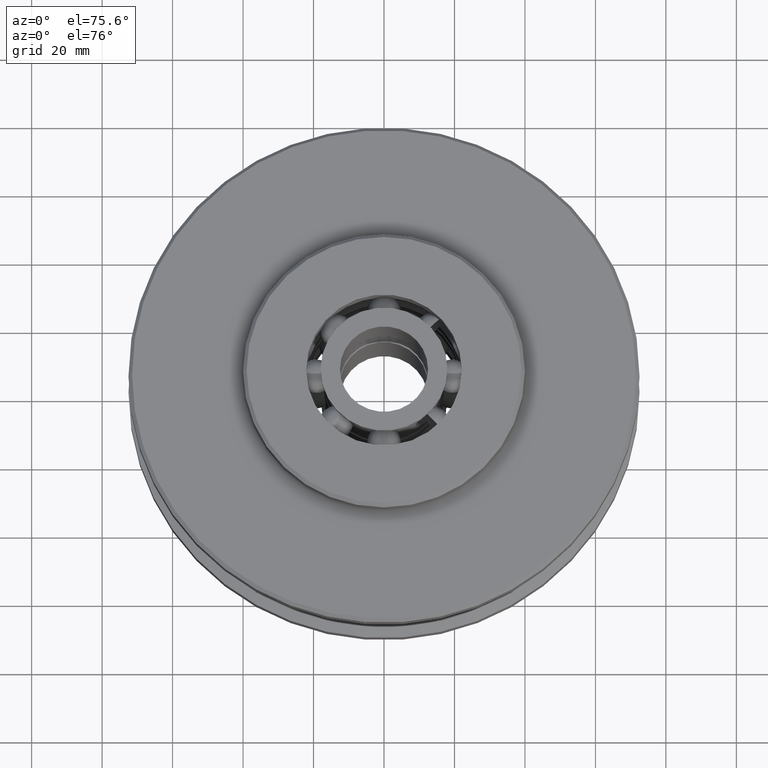
[diagram: clean part render]
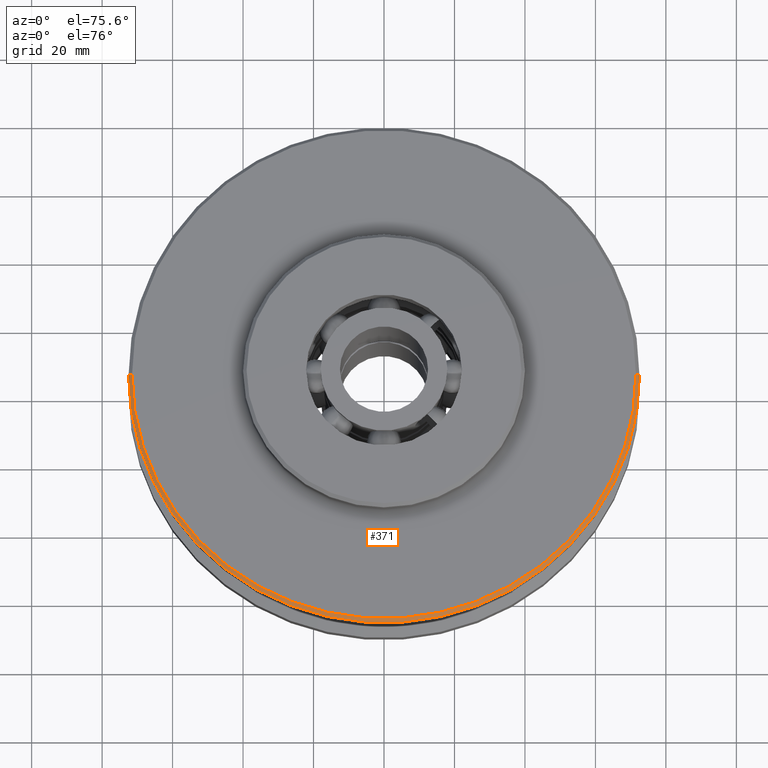
[diagram: same view with one face highlighted and labeled with its STEP entity id]
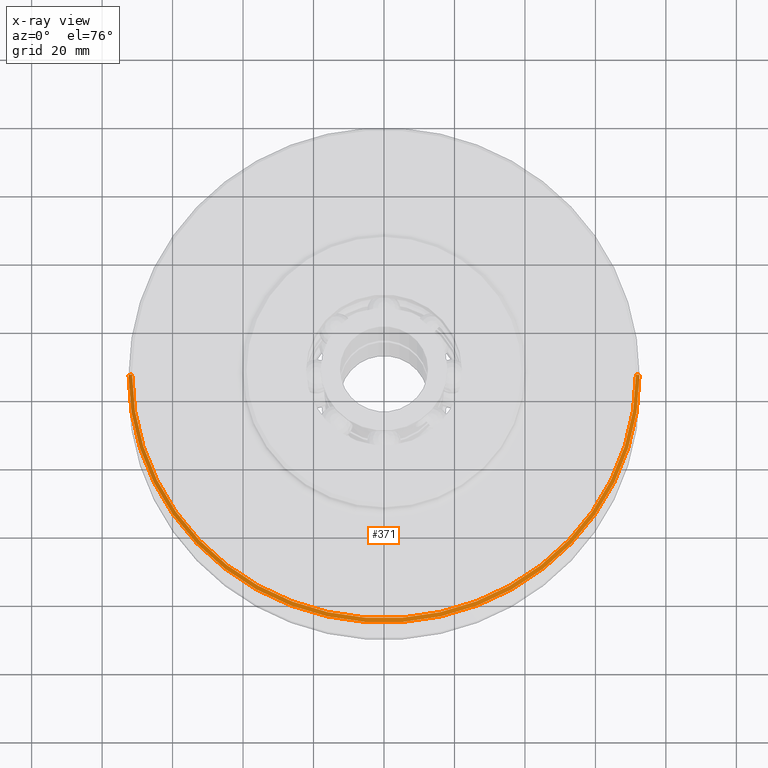
[diagram: x-ray of the same camera — body ghosted, the highlighted face saturated]
A machine part, auxiliary view. The second image highlights one B-rep face of the part: STEP entity #371.
The next image is the same camera in x-ray: the body ghosted, the highlighted face saturated — about 0% of this face is hidden behind the body in this view.
In plain terms, the highlighted conical surface has half-angle 45 deg.
Its self-contained STEP definition (entity closure, byte-faithful):
#371=ADVANCED_FACE('',(#771),#772,.T.);
#771=FACE_OUTER_BOUND('',#1181,.T.);
#772=CONICAL_SURFACE('',#1182,72.0,0.785398163397448);
#1181=EDGE_LOOP('',(#2435,#2436,#2437,#2438));
#1182=AXIS2_PLACEMENT_3D('',#2439,#2440,#2441);
#2435=ORIENTED_EDGE('',*,*,#2701,.T.);
#2436=ORIENTED_EDGE('',*,*,#3076,.F.);
#2437=ORIENTED_EDGE('',*,*,#2703,.T.);
#2438=ORIENTED_EDGE('',*,*,#3073,.T.);
#2439=CARTESIAN_POINT('',(0.0,0.0,10.5));
#2440=DIRECTION('',(-0.0,-0.0,-1.0));
#2441=DIRECTION('',(1.0,0.0,0.0));
#2701=EDGE_CURVE('',#3334,#3335,#3336,.T.);
#2703=EDGE_CURVE('',#3339,#3337,#3340,.T.);
#3073=EDGE_CURVE('',#3337,#3334,#3890,.T.);
#3076=EDGE_CURVE('',#3339,#3335,#3893,.T.);
#3334=VERTEX_POINT('',#4871);
#3335=VERTEX_POINT('',#4872);
#3336=LINE('',#4873,#4874);
#3337=VERTEX_POINT('',#4875);
#3339=VERTEX_POINT('',#4877);
#3340=LINE('',#4878,#4879);
#3890=CIRCLE('',#7809,72.5);
#3893=CIRCLE('',#7812,71.5);
#4871=CARTESIAN_POINT('',(72.5,0.0,10.0));
#4872=CARTESIAN_POINT('',(71.5,0.0,11.0));
#4873=CARTESIAN_POINT('',(72.0,-8.81745695386094E-015,10.5));
#4874=VECTOR('',#8034,1.0);
#4875=CARTESIAN_POINT('',(-72.5,8.87868929381831E-015,10.0));
#4877=CARTESIAN_POINT('',(-71.5,8.75622461390357E-015,11.0));
#4878=CARTESIAN_POINT('',(-72.0,8.81745695386094E-015,10.5));
#4879=VECTOR('',#8038,1.0);
#7809=AXIS2_PLACEMENT_3D('',#8418,#8419,#8420);
#7812=AXIS2_PLACEMENT_3D('',#8424,#8425,#8426);
#8034=DIRECTION('',(-0.707106781186547,8.65956056235493E-017,0.707106781186548));
#8038=DIRECTION('',(-0.707106781186547,8.65956056235493E-017,-0.707106781186548));
#8418=CARTESIAN_POINT('',(0.0,0.0,10.0));
#8419=DIRECTION('',(0.0,0.0,1.0));
#8420=DIRECTION('',(1.0,0.0,0.0));
#8424=CARTESIAN_POINT('',(0.0,0.0,11.0));
#8425=DIRECTION('',(0.0,0.0,1.0));
#8426=DIRECTION('',(1.0,0.0,0.0));